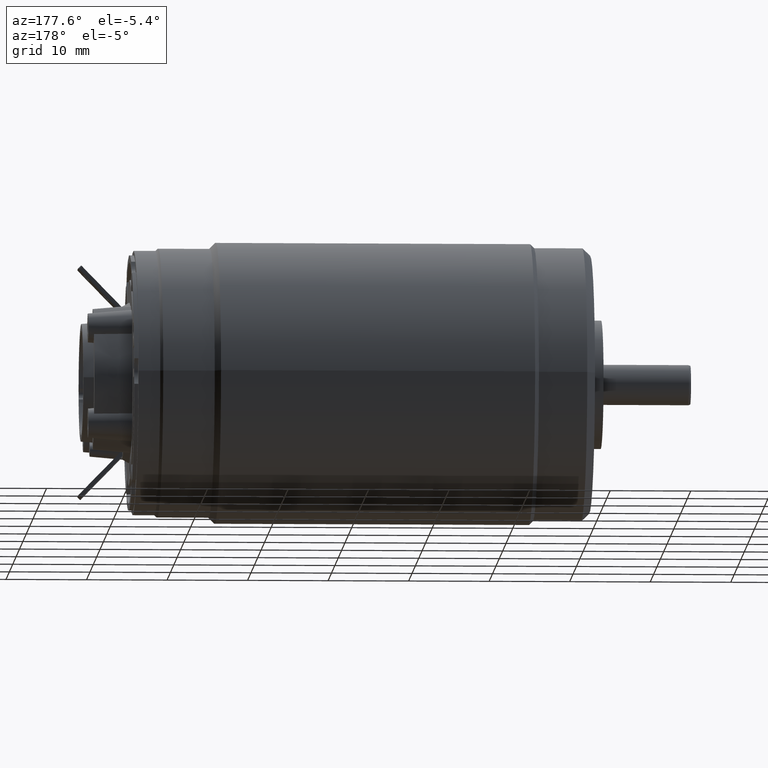
[diagram: clean part render]
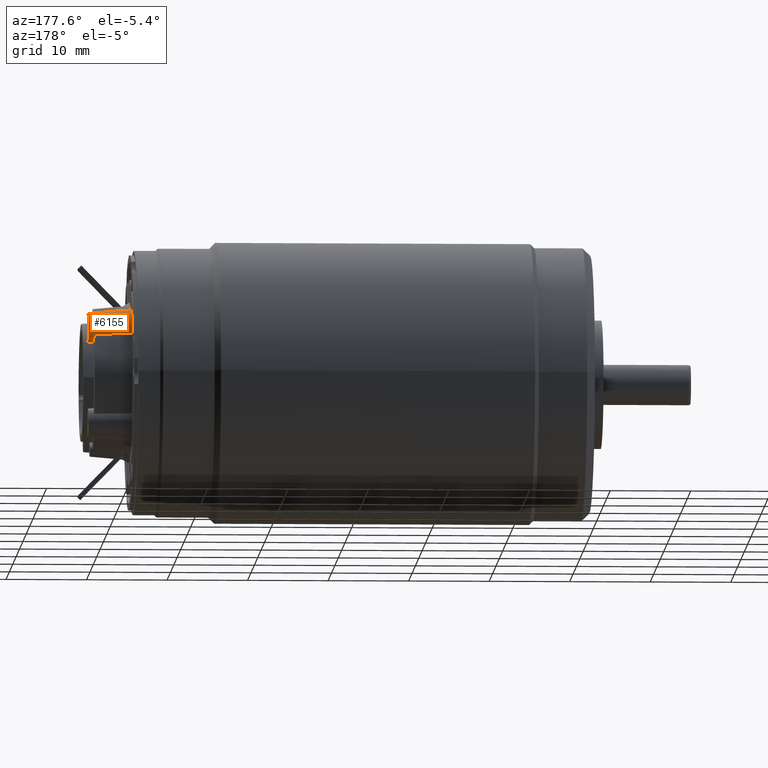
[diagram: same view with one face highlighted and labeled with its STEP entity id]
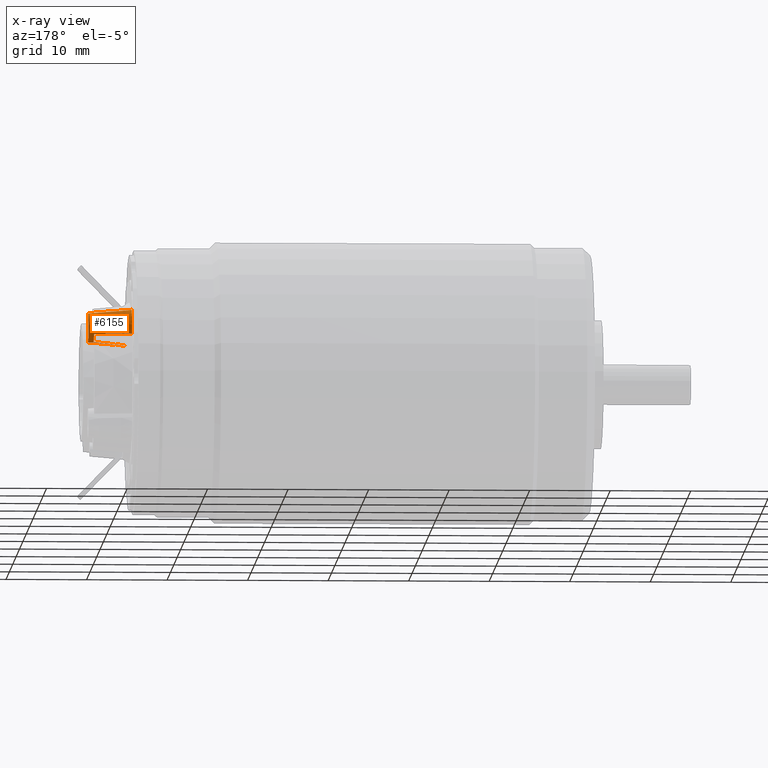
[diagram: x-ray of the same camera — body ghosted, the highlighted face saturated]
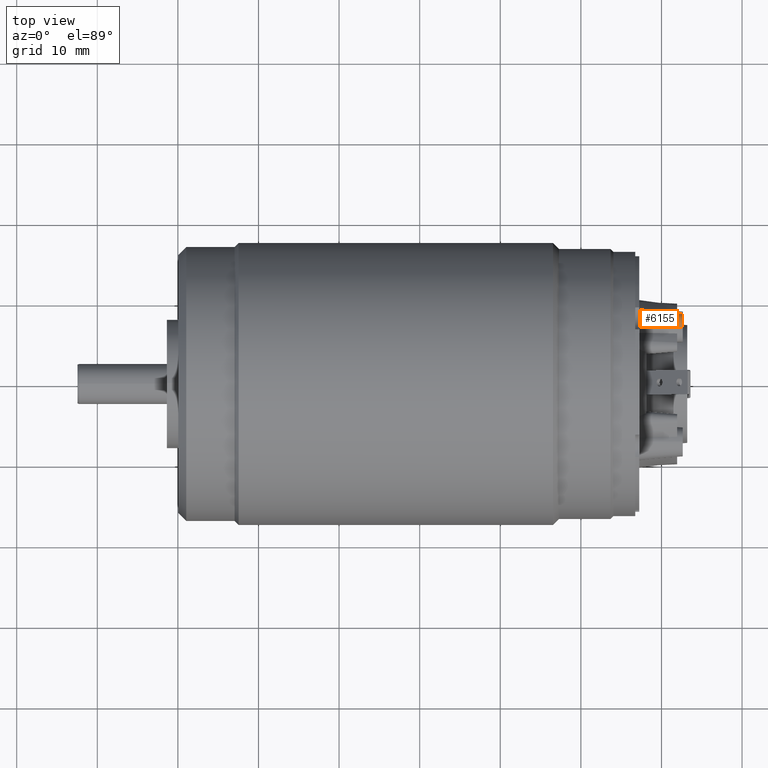
[diagram: same view with one face highlighted and labeled with its STEP entity id]
A machine part, auxiliary view. The second image highlights one B-rep face of the part: STEP entity #6155.
The next image is the same camera in x-ray: the body ghosted, the highlighted face saturated — about 0% of this face is hidden behind the body in this view.
A second angle (top view) of the same face is appended — the face is thin or edge-on in the first view.
In plain terms, the highlighted conical surface has half-angle 5 deg.
Its self-contained STEP definition (entity closure, byte-faithful):
#176=CARTESIAN_POINT('',(7.24E0,6.87E0,6.19E0));
#177=DIRECTION('',(-1.E0,0.E0,0.E0));
#178=DIRECTION('',(0.E0,0.E0,1.E0));
#179=AXIS2_PLACEMENT_3D('',#176,#177,#178);
#1671=CARTESIAN_POINT('',(1.194E1,8.493058856239E0,5.279010443677E0));
#1672=CARTESIAN_POINT('',(1.143628636734E1,8.544236848607E0,5.280153579110E0));
#1673=CARTESIAN_POINT('',(1.041651425644E1,8.647075733922E0,5.283323954765E0));
#1674=CARTESIAN_POINT('',(8.849836330280E0,8.802983000737E0,5.290507898718E0));
#1675=CARTESIAN_POINT('',(7.780721768987E0,8.908128397118E0,5.296794350968E0));
#1676=CARTESIAN_POINT('',(7.24E0,8.961025586871E0,5.300286553032E0));
#1716=CARTESIAN_POINT('',(1.194E1,6.87E0,6.19E0));
#1717=DIRECTION('',(-1.E0,0.E0,0.E0));
#1718=DIRECTION('',(0.E0,8.720299670979E-1,-4.894524864410E-1));
#1719=AXIS2_PLACEMENT_3D('',#1716,#1717,#1718);
#1875=CARTESIAN_POINT('',(8.106025403784E0,6.87E0,6.19E0));
#1876=DIRECTION('',(-1.E0,0.E0,0.E0));
#1877=DIRECTION('',(0.E0,1.109505362121E-1,-9.938259296850E-1));
#1878=AXIS2_PLACEMENT_3D('',#1875,#1876,#1877);
#2047=DIRECTION('',(9.961946980917E-1,0.E0,-8.715574274766E-2));
#2048=VECTOR('',#2047,5.420627122734E0);
#2049=CARTESIAN_POINT('',(7.24E0,6.87E0,8.462438783040E0));
#2050=LINE('',#2049,#2048);
#2058=CARTESIAN_POINT('',(8.106025403784E0,7.113721867258E0,4.006891025663E0));
#2059=CARTESIAN_POINT('',(8.544978873307E0,7.134712772722E0,4.047876477339E0));
#2060=CARTESIAN_POINT('',(9.414251663787E0,7.175555770180E0,4.129846874822E0));
#2061=CARTESIAN_POINT('',(1.069225029706E1,7.233345090775E0,4.252864953759E0));
#2062=CARTESIAN_POINT('',(1.152696542602E1,7.269504696940E0,4.334972456478E0));
#2063=CARTESIAN_POINT('',(1.194E1,7.286977124516E0,4.376067228320E0));
#2097=CARTESIAN_POINT('',(1.264E1,6.87E0,6.19E0));
#2098=DIRECTION('',(-1.E0,0.E0,0.E0));
#2099=DIRECTION('',(0.E0,0.E0,1.E0));
#2100=AXIS2_PLACEMENT_3D('',#2097,#2098,#2099);
#2167=DIRECTION('',(9.961946980917E-1,0.E0,8.715574274766E-2));
#2168=VECTOR('',#2167,4.551293642599E0);
#2169=CARTESIAN_POINT('',(8.106025403784E0,6.87E0,3.993328622117E0));
#2170=LINE('',#2169,#2168);
#2994=CARTESIAN_POINT('',(7.24E0,6.87E0,8.462438783040E0));
#2995=CARTESIAN_POINT('',(1.264E1,6.87E0,7.99E0));
#2996=VERTEX_POINT('',#2994);
#2997=VERTEX_POINT('',#2995);
#2998=CARTESIAN_POINT('',(8.106025403784E0,7.113721867258E0,4.006891025663E0));
#2999=VERTEX_POINT('',#2998);
#3001=CARTESIAN_POINT('',(7.24E0,8.961025586871E0,5.300286553032E0));
#3003=VERTEX_POINT('',#3001);
#3005=CARTESIAN_POINT('',(1.194E1,7.286977124516E0,4.376067228320E0));
#3007=VERTEX_POINT('',#3005);
#3009=CARTESIAN_POINT('',(1.194E1,8.493058856239E0,5.279010443677E0));
#3011=VERTEX_POINT('',#3009);
#3044=CARTESIAN_POINT('',(1.264E1,6.87E0,4.39E0));
#3045=VERTEX_POINT('',#3044);
#3046=CARTESIAN_POINT('',(8.106025403784E0,6.87E0,3.993328622117E0));
#3047=VERTEX_POINT('',#3046);
#6136=CARTESIAN_POINT('',(9.94E0,6.87E0,6.19E0));
#6137=DIRECTION('',(-1.E0,0.E0,0.E0));
#6138=DIRECTION('',(0.E0,0.E0,1.E0));
#6139=AXIS2_PLACEMENT_3D('',#6136,#6137,#6138);
#6140=CONICAL_SURFACE('',#6139,2.036219391520E0,5.E0);
#6141=ORIENTED_EDGE('',*,*,#3783,.T.);
#6142=ORIENTED_EDGE('',*,*,#5822,.F.);
#6143=ORIENTED_EDGE('',*,*,#5891,.T.);
#6145=ORIENTED_EDGE('',*,*,#6144,.F.);
#6146=ORIENTED_EDGE('',*,*,#6048,.T.);
#6148=ORIENTED_EDGE('',*,*,#6147,.T.);
#6150=ORIENTED_EDGE('',*,*,#6149,.F.);
#6152=ORIENTED_EDGE('',*,*,#6151,.F.);
#6153=EDGE_LOOP('',(#6141,#6142,#6143,#6145,#6146,#6148,#6150,#6152));
#6154=FACE_OUTER_BOUND('',#6153,.F.);
#6155=ADVANCED_FACE('',(#6154),#6140,.T.);
#180=CIRCLE('',#179,2.272438783040E0);
#1677=B_SPLINE_CURVE_WITH_KNOTS('',3,(#1671,#1672,#1673,#1674,#1675,#1676),
.UNSPECIFIED.,.F.,.F.,(4,1,1,4),(0.E0,3.333333333333E-1,6.666666666667E-1,1.E0),
.UNSPECIFIED.);
#1720=CIRCLE('',#1719,1.861242064468E0);
#1879=CIRCLE('',#1878,2.196671377883E0);
#2064=B_SPLINE_CURVE_WITH_KNOTS('',3,(#2058,#2059,#2060,#2061,#2062,#2063),
.UNSPECIFIED.,.F.,.F.,(4,1,1,4),(0.E0,3.333333333333E-1,6.666666666667E-1,1.E0),
.UNSPECIFIED.);
#2101=CIRCLE('',#2100,1.8E0);
#3783=EDGE_CURVE('',#2996,#3003,#180,.T.);
#5822=EDGE_CURVE('',#3011,#3003,#1677,.T.);
#5891=EDGE_CURVE('',#3011,#3007,#1720,.T.);
#6048=EDGE_CURVE('',#2999,#3047,#1879,.T.);
#6144=EDGE_CURVE('',#2999,#3007,#2064,.T.);
#6147=EDGE_CURVE('',#3047,#3045,#2170,.T.);
#6149=EDGE_CURVE('',#2997,#3045,#2101,.T.);
#6151=EDGE_CURVE('',#2996,#2997,#2050,.T.);